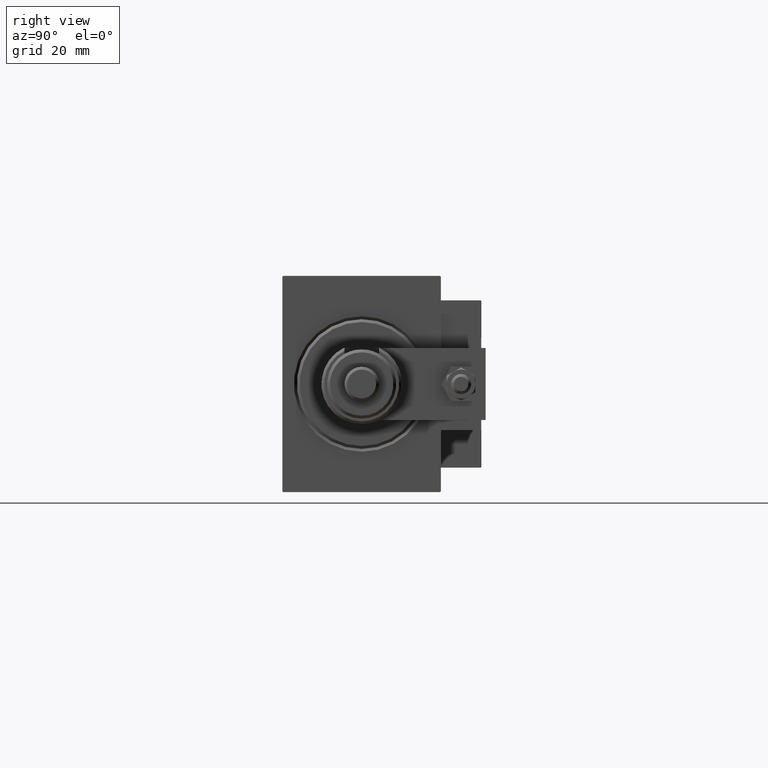
[diagram: clean part render]
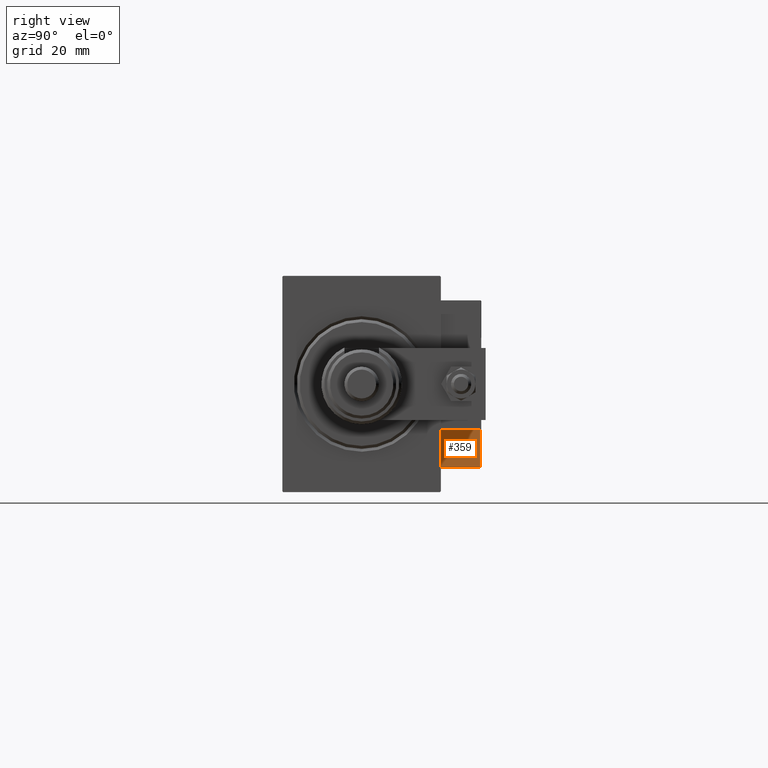
[diagram: same view with one face highlighted and labeled with its STEP entity id]
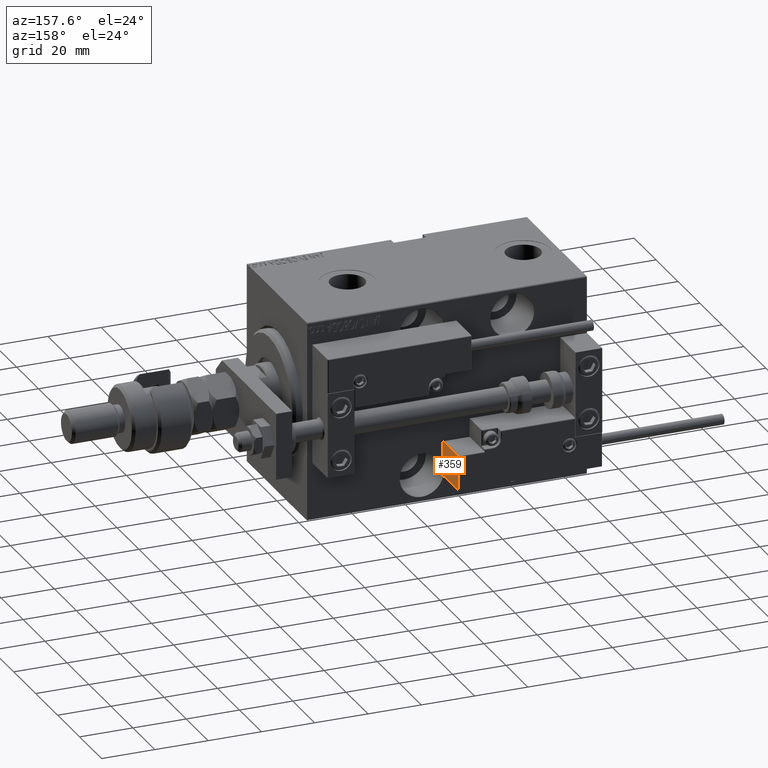
[diagram: same view with one face highlighted and labeled with its STEP entity id]
A machine part, right view. The second image highlights one B-rep face of the part: STEP entity #359.
A second angle (auxiliary view) of the same face is appended — the face is thin or edge-on in the first view.
In plain terms, the highlighted planar face has unit normal (-1, -0, -0).
Its self-contained STEP definition (entity closure, byte-faithful):
#359 = ADVANCED_FACE ( 'NONE', ( #5355 ), #35565, .F. ) ;
#669 = AXIS2_PLACEMENT_3D ( 'NONE', #44394, #47879, #10662 ) ;
#1880 = VECTOR ( 'NONE', #8894, 1000.000000000000000 ) ;
#3000 = ORIENTED_EDGE ( 'NONE', *, *, #19448, .T. ) ;
#5355 = FACE_OUTER_BOUND ( 'NONE', #34979, .T. ) ;
#7314 = LINE ( 'NONE', #27917, #1880 ) ;
#8894 = DIRECTION ( 'NONE',  ( 0.000000000000000000, 1.000000000000000000, 0.000000000000000000 ) ) ;
#9921 = CARTESIAN_POINT ( 'NONE',  ( 27.00000000000006395, 7.000000000000007994, 14.00000000000000000 ) ) ;
#10454 = EDGE_CURVE ( 'NONE', #50787, #12247, #25552, .T. ) ;
#10662 = DIRECTION ( 'NONE',  ( 0.000000000000000000, 0.000000000000000000, 1.000000000000000000 ) ) ;
#11086 = VECTOR ( 'NONE', #17780, 1000.000000000000000 ) ;
#12247 = VERTEX_POINT ( 'NONE', #18127 ) ;
#12293 = DIRECTION ( 'NONE',  ( -0.000000000000000000, -0.000000000000000000, -1.000000000000000000 ) ) ;
#13322 = ORIENTED_EDGE ( 'NONE', *, *, #30156, .T. ) ;
#17780 = DIRECTION ( 'NONE',  ( -0.000000000000000000, -1.000000000000000000, -0.000000000000000000 ) ) ;
#18127 = CARTESIAN_POINT ( 'NONE',  ( 27.00000000000006395, 7.000000000000007994, 13.70000000000000107 ) ) ;
#18379 = ORIENTED_EDGE ( 'NONE', *, *, #46635, .F. ) ;
#18683 = VECTOR ( 'NONE', #22724, 1000.000000000000000 ) ;
#19448 = EDGE_CURVE ( 'NONE', #23541, #28920, #7314, .T. ) ;
#22724 = DIRECTION ( 'NONE',  ( -0.000000000000000000, -0.000000000000000000, -1.000000000000000000 ) ) ;
#23541 = VERTEX_POINT ( 'NONE', #50289 ) ;
#25178 = VECTOR ( 'NONE', #12293, 1000.000000000000000 ) ;
#25552 = LINE ( 'NONE', #29846, #11086 ) ;
#27917 = CARTESIAN_POINT ( 'NONE',  ( 27.00000000000006395, 7.000000000000007994, 0.000000000000000000 ) ) ;
#28920 = VERTEX_POINT ( 'NONE', #34771 ) ;
#29846 = CARTESIAN_POINT ( 'NONE',  ( 27.00000000000006395, 7.000000000000007994, 13.70000000000000107 ) ) ;
#30156 = EDGE_CURVE ( 'NONE', #12247, #23541, #50626, .T. ) ;
#30236 = ORIENTED_EDGE ( 'NONE', *, *, #10454, .T. ) ;
#32655 = LINE ( 'NONE', #44188, #25178 ) ;
#34771 = CARTESIAN_POINT ( 'NONE',  ( 27.00000000000006395, 20.00000000000001776, 0.000000000000000000 ) ) ;
#34979 = EDGE_LOOP ( 'NONE', ( #18379, #30236, #13322, #3000 ) ) ;
#35565 = PLANE ( 'NONE',  #669 ) ;
#44188 = CARTESIAN_POINT ( 'NONE',  ( 27.00000000000006395, 20.00000000000001776, 14.00000000000000000 ) ) ;
#44394 = CARTESIAN_POINT ( 'NONE',  ( 27.00000000000006395, 7.000000000000007994, 14.00000000000000000 ) ) ;
#45110 = CARTESIAN_POINT ( 'NONE',  ( 27.00000000000006395, 20.00000000000001776, 13.70000000000000107 ) ) ;
#46635 = EDGE_CURVE ( 'NONE', #50787, #28920, #32655, .T. ) ;
#47879 = DIRECTION ( 'NONE',  ( -1.000000000000000000, 0.000000000000000000, 0.000000000000000000 ) ) ;
#50289 = CARTESIAN_POINT ( 'NONE',  ( 27.00000000000006395, 7.000000000000007994, 0.000000000000000000 ) ) ;
#50626 = LINE ( 'NONE', #9921, #18683 ) ;
#50787 = VERTEX_POINT ( 'NONE', #45110 ) ;